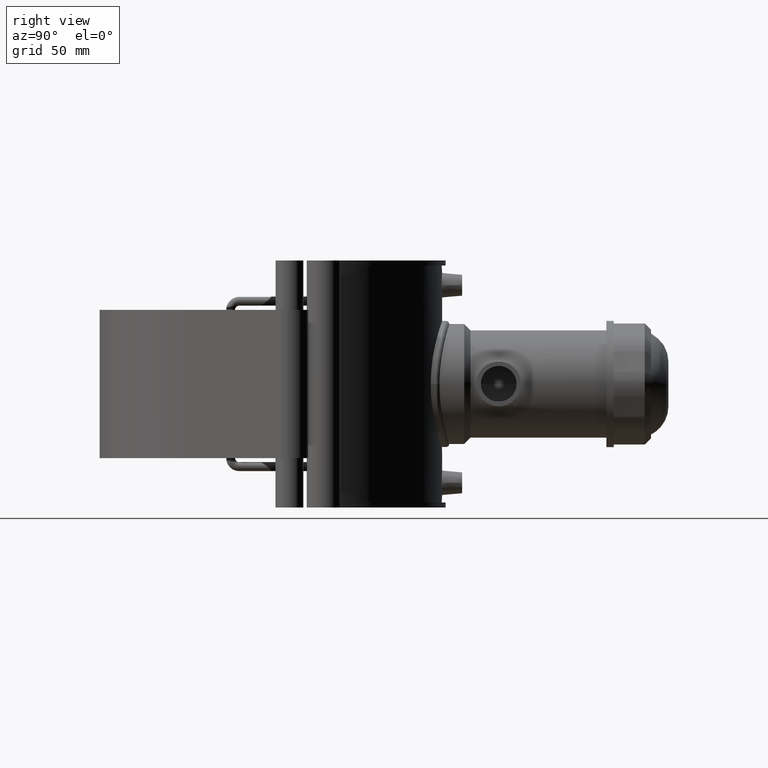
[diagram: clean part render]
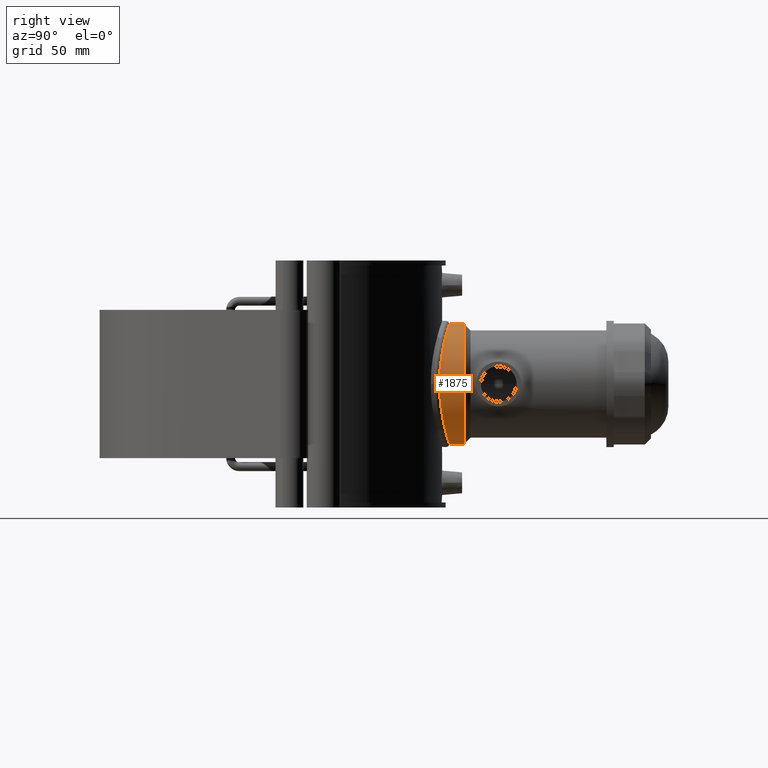
[diagram: same view with one face highlighted and labeled with its STEP entity id]
A machine part, right view. The second image highlights one B-rep face of the part: STEP entity #1875.
In plain terms, the highlighted cylindrical surface (bore or boss wall) has radius 42.75 mm, axis along (0, 1, 0).
Its self-contained STEP definition (entity closure, byte-faithful):
#363=FACE_BOUND('',#578,.T.);
#402=B_SPLINE_CURVE_WITH_KNOTS('',3,(#2923,#2924,#2925,#2926,#2927,#2928,
#2929,#2930,#2931,#2932,#2933,#2934,#2935,#2936,#2937,#2938,#2939,#2940,
#2941,#2942,#2943,#2944,#2945,#2946,#2947,#2948,#2949,#2950,#2951,#2952,
#2953,#2954,#2955,#2956),.UNSPECIFIED.,.F.,.F.,(4,2,2,2,2,2,2,2,2,2,2,2,
2,2,2,2,4),(6.49113404495532,7.3023662848561,8.11359852475688,8.92483076465766,
9.73606300455844,10.5476142758965,11.3591655472345,12.1707168185726,12.9822680899106,
13.7938193612487,14.6053706325867,15.4169219039248,16.2284731752628,17.0397054151636,
17.8509376550644,18.6621698949652,19.473402134866),.UNSPECIFIED.);
#403=B_SPLINE_CURVE_WITH_KNOTS('',3,(#2957,#2958,#2959,#2960,#2961,#2962,
#2963,#2964,#2965,#2966,#2967,#2968,#2969,#2970,#2971,#2972,#2973,#2974,
#2975,#2976,#2977,#2978,#2979,#2980,#2981,#2982,#2983,#2984,#2985,#2986,
#2987,#2988,#2989,#2990,#2991),.UNSPECIFIED.,.F.,.F.,(4,2,2,2,2,2,2,2,3,
2,2,2,2,2,2,2,4),(19.473402134866,20.2846343747667,21.0958666146675,21.9070988545683,
22.7183310944691,23.5298823658071,24.3414336371452,25.1529849084832,25.9645361798213,
26.7760874511593,27.5876387224974,28.3991899938354,29.2107412651735,30.0219735050743,
30.833205744975,31.6444379848758,32.4556702247766),.UNSPECIFIED.);
#415=CYLINDRICAL_SURFACE('',#1999,42.75);
#454=FACE_OUTER_BOUND('',#577,.T.);
#577=EDGE_LOOP('',(#1269));
#578=EDGE_LOOP('',(#1270,#1271));
#734=CIRCLE('',#2000,42.75);
#821=VERTEX_POINT('',#2919);
#822=VERTEX_POINT('',#2921);
#823=VERTEX_POINT('',#2922);
#999=EDGE_CURVE('',#821,#821,#734,.T.);
#1000=EDGE_CURVE('',#822,#823,#402,.T.);
#1001=EDGE_CURVE('',#823,#822,#403,.T.);
#1269=ORIENTED_EDGE('',*,*,#999,.F.);
#1270=ORIENTED_EDGE('',*,*,#1000,.F.);
#1271=ORIENTED_EDGE('',*,*,#1001,.F.);
#1875=ADVANCED_FACE('',(#454,#363),#415,.T.);
#1999=AXIS2_PLACEMENT_3D('',#2918,#2216,#2217);
#2000=AXIS2_PLACEMENT_3D('',#2920,#2218,#2219);
#2216=DIRECTION('center_axis',(0.,1.,3.06161699786838E-16));
#2217=DIRECTION('ref_axis',(0.,0.,1.));
#2218=DIRECTION('center_axis',(0.,1.,3.06161699786838E-16));
#2219=DIRECTION('ref_axis',(0.,0.,-1.));
#2918=CARTESIAN_POINT('Origin',(0.,74.225,-1.17183390593412E-14));
#2919=CARTESIAN_POINT('',(5.23536506635493E-15,144.,42.75));
#2920=CARTESIAN_POINT('Origin',(0.,144.,9.64409354328542E-15));
#2921=CARTESIAN_POINT('',(-1.005528993403E-11,133.38,42.75));
#2922=CARTESIAN_POINT('',(7.20031811951571E-10,133.38,-42.75));
#2923=CARTESIAN_POINT('Ctrl Pts',(0.,133.38,42.75));
#2924=CARTESIAN_POINT('Ctrl Pts',(-2.70410746633593,133.38,42.75));
#2925=CARTESIAN_POINT('Ctrl Pts',(-5.4945861059681,133.295661163799,42.4892876774164));
#2926=CARTESIAN_POINT('Ctrl Pts',(-11.0334685968063,132.951819589995,41.3979783868802));
#2927=CARTESIAN_POINT('Ctrl Pts',(-13.7819441847504,132.692533645415,40.5676772414088));
#2928=CARTESIAN_POINT('Ctrl Pts',(-19.0430034968755,132.040200276362,38.3802347620035));
#2929=CARTESIAN_POINT('Ctrl Pts',(-21.5601248684436,131.647138402298,37.0213562219994));
#2930=CARTESIAN_POINT('Ctrl Pts',(-26.2096756310316,130.800844558594,33.8891236821752));
#2931=CARTESIAN_POINT('Ctrl Pts',(-28.3420909567519,130.348389902472,32.1155388346979));
#2932=CARTESIAN_POINT('Ctrl Pts',(-32.1162808222822,129.470167714971,28.3413489691676));
#2933=CARTESIAN_POINT('Ctrl Pts',(-33.8899541033785,129.012922146476,26.2085832690009));
#2934=CARTESIAN_POINT('Ctrl Pts',(-37.0218622362173,128.149306618597,21.5592333382026));
#2935=CARTESIAN_POINT('Ctrl Pts',(-38.3803609564446,127.743816996673,19.0426633783744));
#2936=CARTESIAN_POINT('Ctrl Pts',(-40.5673781711597,127.066214373057,13.7827000870979));
#2937=CARTESIAN_POINT('Ctrl Pts',(-41.3976318741031,126.794286078659,11.034752445799));
#2938=CARTESIAN_POINT('Ctrl Pts',(-42.4890967488951,126.432715564001,5.49602977802389));
#2939=CARTESIAN_POINT('Ctrl Pts',(-42.75,126.343428400531,2.70517090446017));
#2940=CARTESIAN_POINT('Ctrl Pts',(-42.75,126.343428400531,-2.70517090446017));
#2941=CARTESIAN_POINT('Ctrl Pts',(-42.4890967488951,126.432715564001,-5.4960297780239));
#2942=CARTESIAN_POINT('Ctrl Pts',(-41.3976318741031,126.794286078659,-11.034752445799));
#2943=CARTESIAN_POINT('Ctrl Pts',(-40.5673781711597,127.066214373057,-13.7827000870979));
#2944=CARTESIAN_POINT('Ctrl Pts',(-38.3803609564446,127.743816996673,-19.0426633783744));
#2945=CARTESIAN_POINT('Ctrl Pts',(-37.0218622362173,128.149306618597,-21.5592333382026));
#2946=CARTESIAN_POINT('Ctrl Pts',(-33.8899541033785,129.012922146476,-26.2085832690009));
#2947=CARTESIAN_POINT('Ctrl Pts',(-32.1162808222822,129.470167714971,-28.3413489691676));
#2948=CARTESIAN_POINT('Ctrl Pts',(-28.3420909567519,130.348389902472,-32.1155388346979));
#2949=CARTESIAN_POINT('Ctrl Pts',(-26.2096756310316,130.800844558594,-33.8891236821752));
#2950=CARTESIAN_POINT('Ctrl Pts',(-21.5601248684436,131.647138402298,-37.0213562219994));
#2951=CARTESIAN_POINT('Ctrl Pts',(-19.0430034968755,132.040200276362,-38.3802347620035));
#2952=CARTESIAN_POINT('Ctrl Pts',(-13.7819441847504,132.692533645415,-40.5676772414088));
#2953=CARTESIAN_POINT('Ctrl Pts',(-11.0334685968063,132.951819589995,-41.3979783868802));
#2954=CARTESIAN_POINT('Ctrl Pts',(-5.4945861059681,133.295661163799,-42.4892876774164));
#2955=CARTESIAN_POINT('Ctrl Pts',(-2.70410746633593,133.38,-42.75));
#2956=CARTESIAN_POINT('Ctrl Pts',(-3.33066907387547E-15,133.38,-42.75));
#2957=CARTESIAN_POINT('Ctrl Pts',(-7.21644966006352E-15,133.38,-42.75));
#2958=CARTESIAN_POINT('Ctrl Pts',(2.70410746633592,133.38,-42.75));
#2959=CARTESIAN_POINT('Ctrl Pts',(5.49458610596809,133.295661163799,-42.4892876774164));
#2960=CARTESIAN_POINT('Ctrl Pts',(11.0334685968063,132.951819589995,-41.3979783868802));
#2961=CARTESIAN_POINT('Ctrl Pts',(13.7819441847504,132.692533645415,-40.5676772414088));
#2962=CARTESIAN_POINT('Ctrl Pts',(19.0430034968755,132.040200276362,-38.3802347620035));
#2963=CARTESIAN_POINT('Ctrl Pts',(21.5601248684436,131.647138402298,-37.0213562219994));
#2964=CARTESIAN_POINT('Ctrl Pts',(26.2096756310316,130.800844558594,-33.8891236821752));
#2965=CARTESIAN_POINT('Ctrl Pts',(28.3420909567519,130.348389902472,-32.1155388346979));
#2966=CARTESIAN_POINT('Ctrl Pts',(32.1162808222822,129.470167714971,-28.3413489691676));
#2967=CARTESIAN_POINT('Ctrl Pts',(33.8899541033785,129.012922146476,-26.2085832690009));
#2968=CARTESIAN_POINT('Ctrl Pts',(37.0218622362173,128.149306618597,-21.5592333382026));
#2969=CARTESIAN_POINT('Ctrl Pts',(38.3803609564446,127.743816996673,-19.0426633783744));
#2970=CARTESIAN_POINT('Ctrl Pts',(40.5673781711597,127.066214373057,-13.7827000870979));
#2971=CARTESIAN_POINT('Ctrl Pts',(41.3976318741031,126.794286078659,-11.034752445799));
#2972=CARTESIAN_POINT('Ctrl Pts',(42.4890967488951,126.432715564001,-5.4960297780239));
#2973=CARTESIAN_POINT('Ctrl Pts',(42.75,126.343428400531,-2.70517090446017));
#2974=CARTESIAN_POINT('Ctrl Pts',(42.75,126.343428400531,0.));
#2975=CARTESIAN_POINT('Ctrl Pts',(42.75,126.343428400531,2.70517090446017));
#2976=CARTESIAN_POINT('Ctrl Pts',(42.4890967488951,126.432715564001,5.4960297780239));
#2977=CARTESIAN_POINT('Ctrl Pts',(41.3976318741031,126.794286078659,11.034752445799));
#2978=CARTESIAN_POINT('Ctrl Pts',(40.5673781711597,127.066214373057,13.7827000870979));
#2979=CARTESIAN_POINT('Ctrl Pts',(38.3803609564446,127.743816996673,19.0426633783744));
#2980=CARTESIAN_POINT('Ctrl Pts',(37.0218622362173,128.149306618597,21.5592333382026));
#2981=CARTESIAN_POINT('Ctrl Pts',(33.8899541033785,129.012922146476,26.2085832690009));
#2982=CARTESIAN_POINT('Ctrl Pts',(32.1162808222822,129.470167714971,28.3413489691676));
#2983=CARTESIAN_POINT('Ctrl Pts',(28.3420909567519,130.348389902472,32.1155388346979));
#2984=CARTESIAN_POINT('Ctrl Pts',(26.2096756310316,130.800844558594,33.8891236821752));
#2985=CARTESIAN_POINT('Ctrl Pts',(21.5601248684436,131.647138402298,37.0213562219994));
#2986=CARTESIAN_POINT('Ctrl Pts',(19.0430034968755,132.040200276362,38.3802347620035));
#2987=CARTESIAN_POINT('Ctrl Pts',(13.7819441847504,132.692533645415,40.5676772414088));
#2988=CARTESIAN_POINT('Ctrl Pts',(11.0334685968063,132.951819589995,41.3979783868802));
#2989=CARTESIAN_POINT('Ctrl Pts',(5.49458610596809,133.295661163799,42.4892876774164));
#2990=CARTESIAN_POINT('Ctrl Pts',(2.70410746633595,133.38,42.75));
#2991=CARTESIAN_POINT('Ctrl Pts',(1.60982338570648E-14,133.38,42.75));